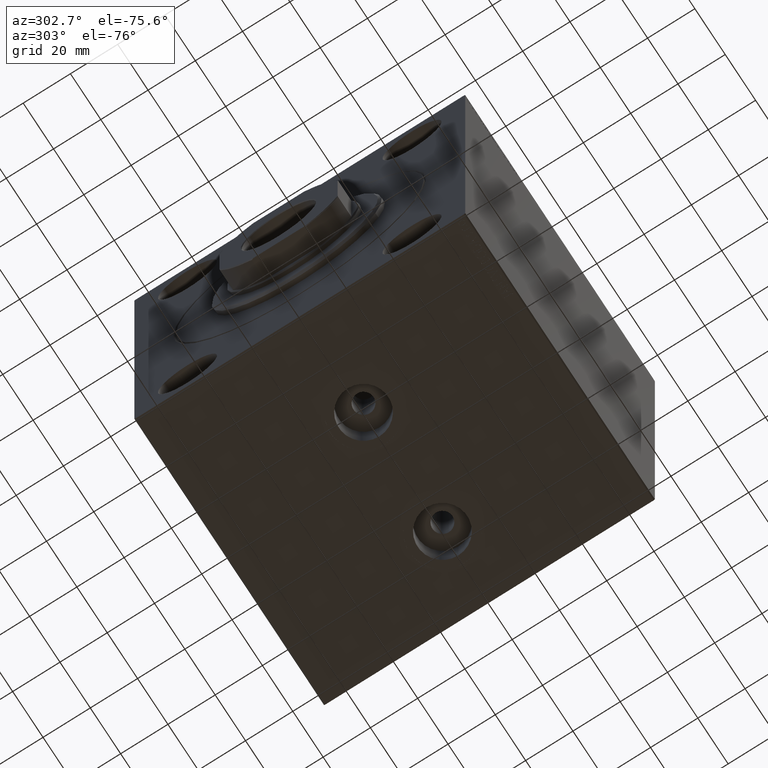
[diagram: clean part render]
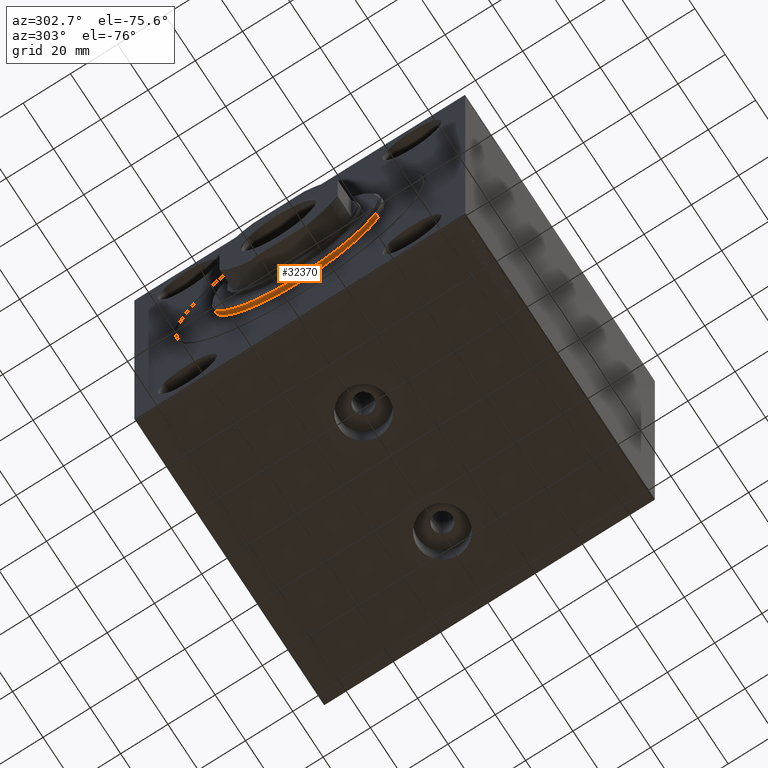
[diagram: same view with one face highlighted and labeled with its STEP entity id]
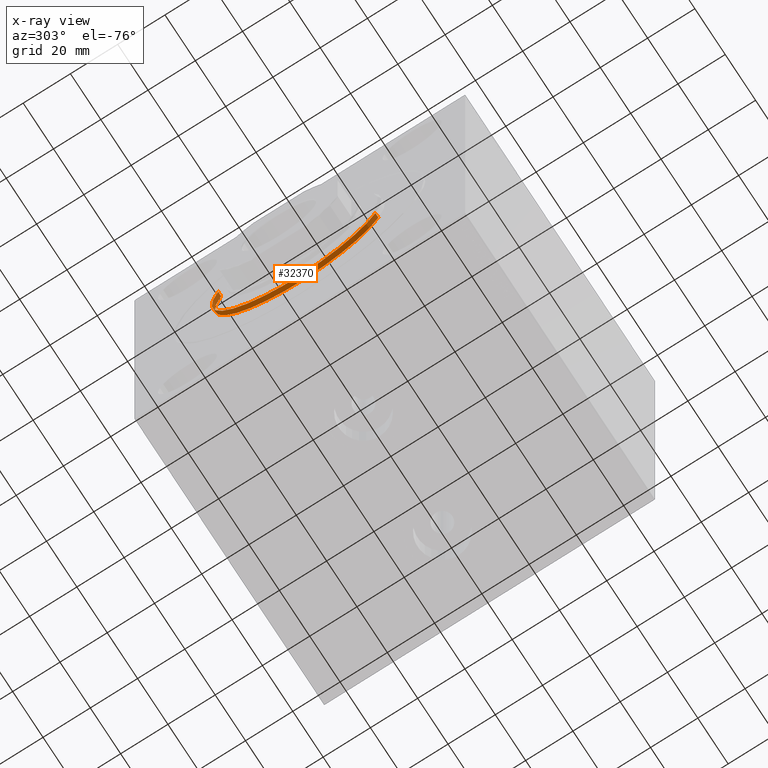
[diagram: x-ray of the same camera — body ghosted, the highlighted face saturated]
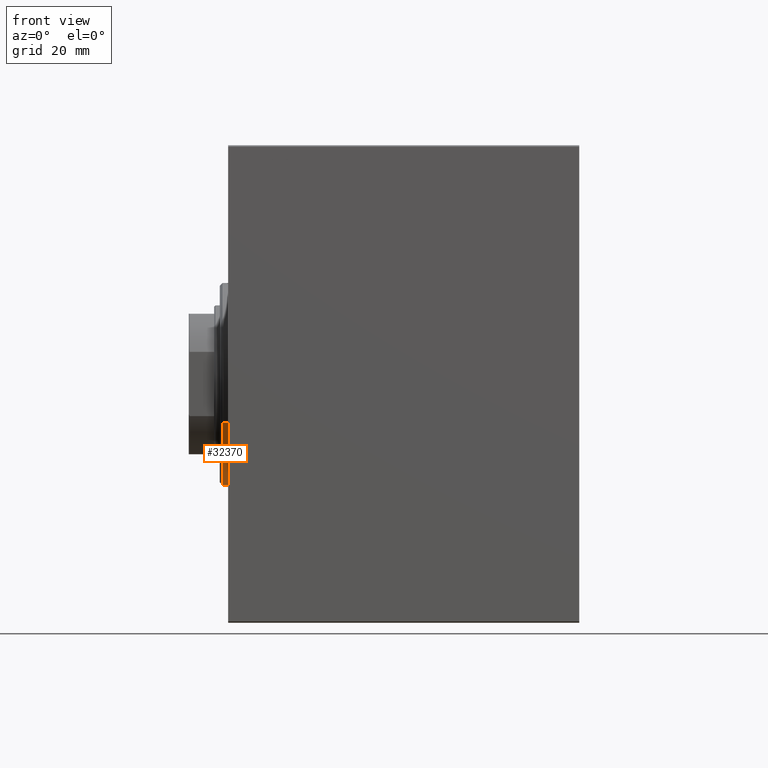
[diagram: same view with one face highlighted and labeled with its STEP entity id]
A machine part, auxiliary view. The second image highlights one B-rep face of the part: STEP entity #32370.
The next image is the same camera in x-ray: the body ghosted, the highlighted face saturated — about 0% of this face is hidden behind the body in this view.
A second angle (front view) of the same face is appended — the face is thin or edge-on in the first view.
In plain terms, the highlighted cylindrical surface (partial cylindrical patch) has radius 36 mm, axis along (1, 0, 0).
Its self-contained STEP definition (entity closure, byte-faithful):
#248 = CARTESIAN_POINT ( 'NONE',  ( 2.000000000000006217, 0.000000000000000000, 0.000000000000000000 ) ) ;
#416 = CARTESIAN_POINT ( 'NONE',  ( 3.000000000000000000, 4.408728476930470856E-15, -36.00000000000000000 ) ) ;
#838 = LINE ( 'NONE', #35066, #12264 ) ;
#1746 = VERTEX_POINT ( 'NONE', #10339 ) ;
#2556 = CARTESIAN_POINT ( 'NONE',  ( 0.000000000000000000, 4.408728476930470856E-15, -36.00000000000000000 ) ) ;
#5188 = CARTESIAN_POINT ( 'NONE',  ( 3.000000000000000000, 0.000000000000000000, 0.000000000000000000 ) ) ;
#8976 = CARTESIAN_POINT ( 'NONE',  ( 0.000000000000000000, 0.000000000000000000, 0.000000000000000000 ) ) ;
#9772 = DIRECTION ( 'NONE',  ( -1.000000000000000000, -0.000000000000000000, -0.000000000000000000 ) ) ;
#10336 = AXIS2_PLACEMENT_3D ( 'NONE', #248, #30737, #34059 ) ;
#10339 = CARTESIAN_POINT ( 'NONE',  ( 2.000000000000006217, 0.000000000000000000, 36.00000000000000000 ) ) ;
#11745 = CARTESIAN_POINT ( 'NONE',  ( 0.000000000000000000, 0.000000000000000000, 36.00000000000000000 ) ) ;
#12264 = VECTOR ( 'NONE', #41298, 1000.000000000000000 ) ;
#12304 = FACE_OUTER_BOUND ( 'NONE', #31331, .T. ) ;
#14241 = EDGE_CURVE ( 'NONE', #17509, #33908, #20009, .T. ) ;
#16301 = DIRECTION ( 'NONE',  ( -1.000000000000000000, -0.000000000000000000, -0.000000000000000000 ) ) ;
#16303 = DIRECTION ( 'NONE',  ( 0.000000000000000000, 0.000000000000000000, -1.000000000000000000 ) ) ;
#16738 = DIRECTION ( 'NONE',  ( 1.000000000000000000, -0.000000000000000000, 0.000000000000000000 ) ) ;
#17509 = VERTEX_POINT ( 'NONE', #26263 ) ;
#18099 = AXIS2_PLACEMENT_3D ( 'NONE', #8976, #16738, #16303 ) ;
#20009 = LINE ( 'NONE', #416, #22577 ) ;
#22102 = CYLINDRICAL_SURFACE ( 'NONE', #31427, 36.00000000000000000 ) ;
#22327 = ORIENTED_EDGE ( 'NONE', *, *, #38744, .T. ) ;
#22577 = VECTOR ( 'NONE', #9772, 1000.000000000000000 ) ;
#22769 = DIRECTION ( 'NONE',  ( 0.000000000000000000, 0.000000000000000000, 1.000000000000000000 ) ) ;
#24633 = ORIENTED_EDGE ( 'NONE', *, *, #14241, .T. ) ;
#25723 = ORIENTED_EDGE ( 'NONE', *, *, #40655, .T. ) ;
#26263 = CARTESIAN_POINT ( 'NONE',  ( 2.000000000000006217, 4.408728476930470856E-15, -36.00000000000000000 ) ) ;
#30737 = DIRECTION ( 'NONE',  ( -1.000000000000000000, 0.000000000000000000, 0.000000000000000000 ) ) ;
#31331 = EDGE_LOOP ( 'NONE', ( #25723, #24633, #22327, #41103 ) ) ;
#31427 = AXIS2_PLACEMENT_3D ( 'NONE', #5188, #16301, #22769 ) ;
#32135 = VERTEX_POINT ( 'NONE', #11745 ) ;
#32343 = CIRCLE ( 'NONE', #18099, 36.00000000000000000 ) ;
#32370 = ADVANCED_FACE ( 'NONE', ( #12304 ), #22102, .T. ) ;
#33044 = EDGE_CURVE ( 'NONE', #1746, #32135, #838, .T. ) ;
#33908 = VERTEX_POINT ( 'NONE', #2556 ) ;
#34059 = DIRECTION ( 'NONE',  ( 0.000000000000000000, 0.000000000000000000, -1.000000000000000000 ) ) ;
#35066 = CARTESIAN_POINT ( 'NONE',  ( 3.000000000000000000, 0.000000000000000000, 36.00000000000000000 ) ) ;
#38744 = EDGE_CURVE ( 'NONE', #33908, #32135, #32343, .T. ) ;
#40655 = EDGE_CURVE ( 'NONE', #1746, #17509, #40863, .T. ) ;
#40863 = CIRCLE ( 'NONE', #10336, 36.00000000000000000 ) ;
#41103 = ORIENTED_EDGE ( 'NONE', *, *, #33044, .F. ) ;
#41298 = DIRECTION ( 'NONE',  ( -1.000000000000000000, -0.000000000000000000, -0.000000000000000000 ) ) ;